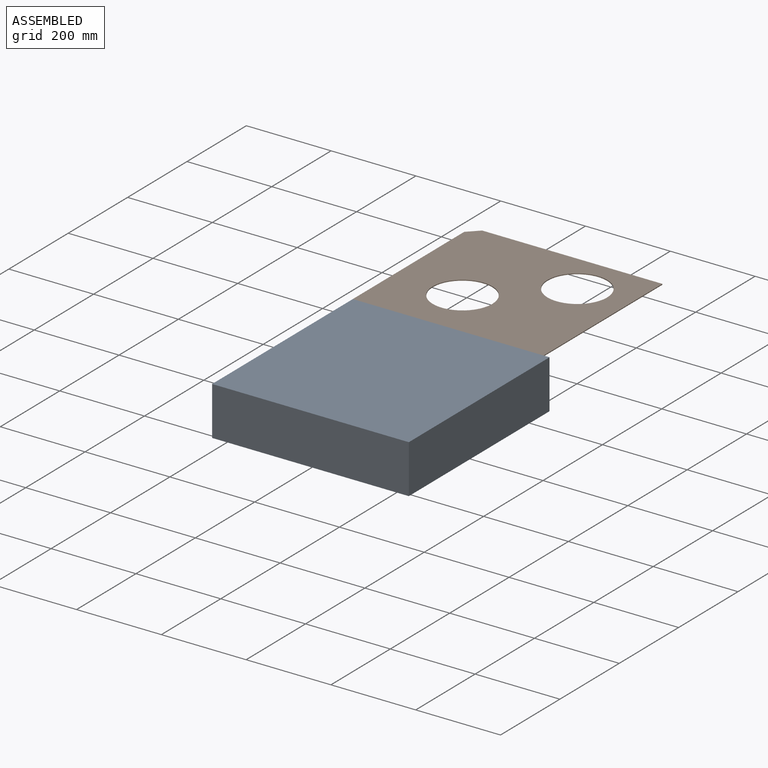
[diagram: assembled view]
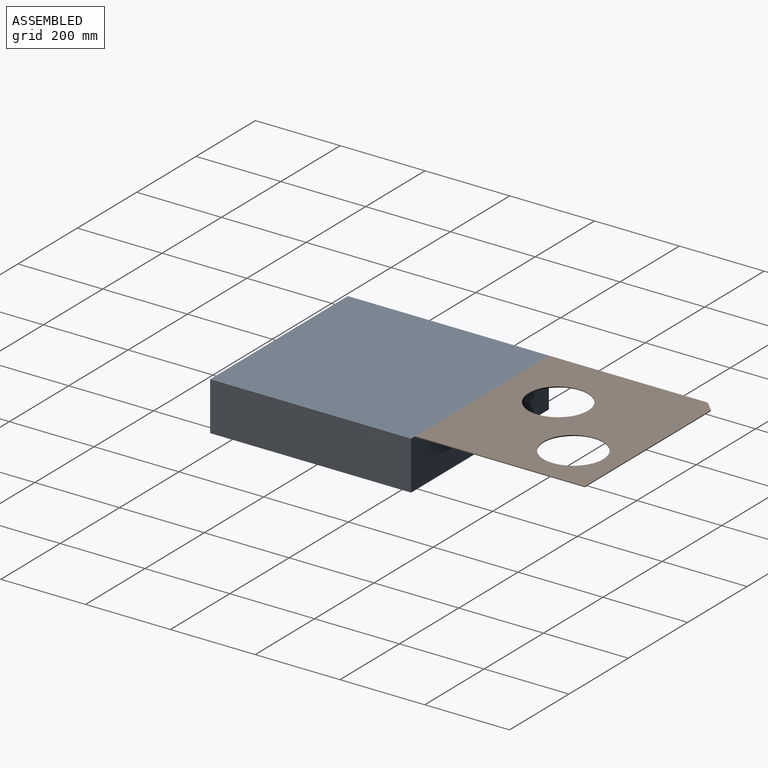
[diagram: assembled view, second angle]
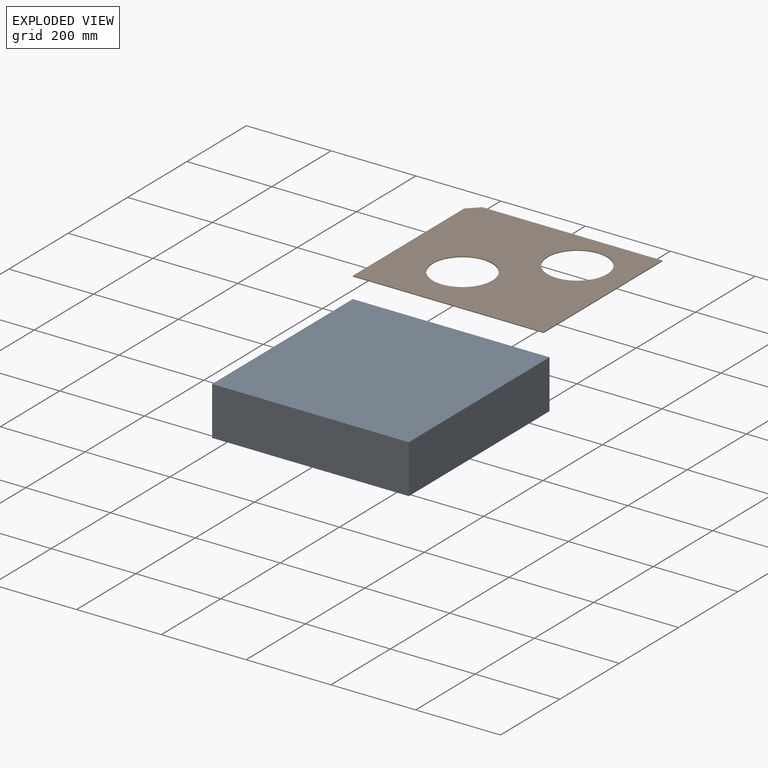
[diagram: exploded view]
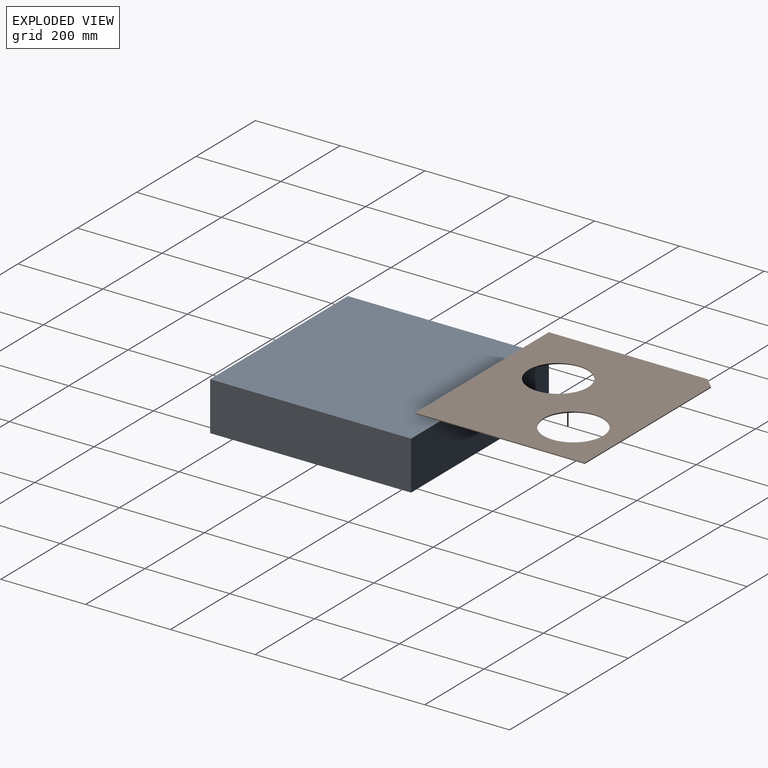
[diagram: exploded view, second angle]
ASSEMBLY  parts=2 mates=3
PART A: 6 faces, bbox 464x474x115 mm
  f0: plane 464x115mm, normal (0,-1,0), area 53360mm2, adj f1,f3,f4,f5
  f1: plane 474x115mm, normal (1,0,0), area 54510mm2, adj f0,f2,f4,f5
  f2: plane 464x115mm, normal (0,1,0), area 53360mm2, adj f1,f3,f4,f5
  f3: plane 474x115mm, normal (-1,0,0), area 54510mm2, adj f0,f2,f4,f5
  f4: plane 474x464mm, normal (0,0,1), area 219936mm2, adj f0,f1,f2,f3
  f5: plane 474x464mm, normal (0,0,-1), area 219936mm2, adj f0,f1,f2,f3
PART B: 9 faces, bbox 450x400x2 mm
  f0: plane 25x25mm, normal (-0.71,0.71,0), area 70.7mm2, adj f1,f6,f7,f8
  f1: plane 375x2mm, normal (-1,0,0), area 750mm2, adj f0,f2,f7,f8
  f2: plane 450x2mm, normal (0,-1,0), area 900mm2, adj f1,f3,f7,f8
  f3: plane 400x2mm, normal (1,0,0), area 800mm2, adj f2,f6,f7,f8
  f4: cylinder r=70.25mm len=140.5mm, axis (0,0,-1), area 882.8mm2, adj f7,f8
  f5: cylinder r=70.25mm len=140.5mm, axis (0,0,-1), area 882.8mm2, adj f7,f8
  f6: plane 425x2mm, normal (0,1,0), area 850mm2, adj f0,f3,f7,f8
  f7: plane 450x400mm, normal (0,0,1), area 148679.6mm2, adj f0,f1,f2,f3,f4,f5,f6
  f8: plane 450x400mm, normal (0,0,-1), area 148679.6mm2, adj f0,f1,f2,f3,f4,f5,f6
PLACE A t=(15.07,3.52,-48.79)mm fixed
PLACE B t=(-216.93,240.52,64.21)mm
MATE planar B.f7 <-> A.f4  axis (0,0,1) through (4.21,437.61,66.21)mm
MATE planar A.f2 <-> B.f2  axis (0,1,0) through (15.07,240.52,8.71)mm
MATE planar B.f1 <-> A.f3  axis (-1,0,0) through (-216.93,428.02,65.21)mm
